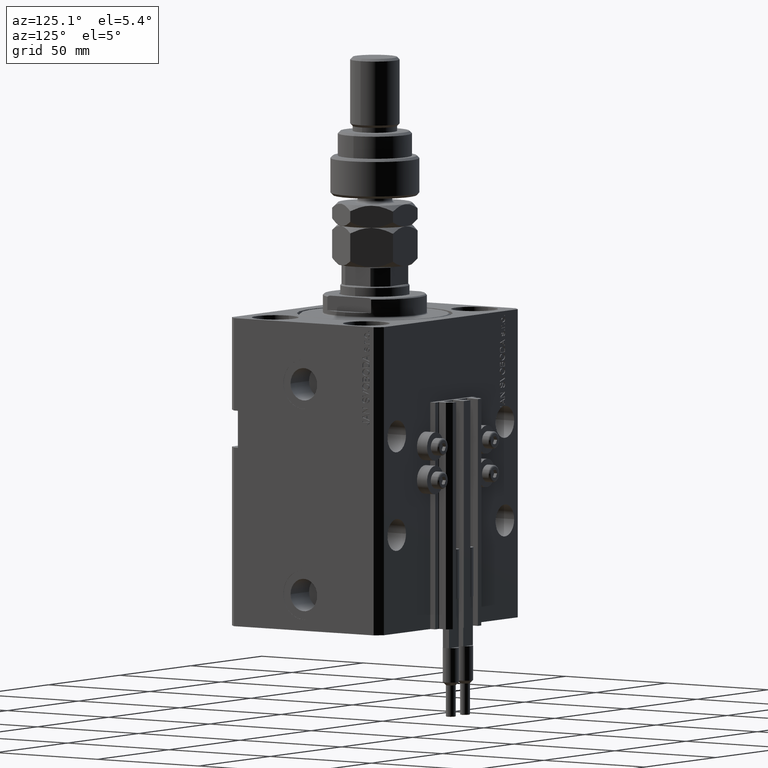
[diagram: clean part render]
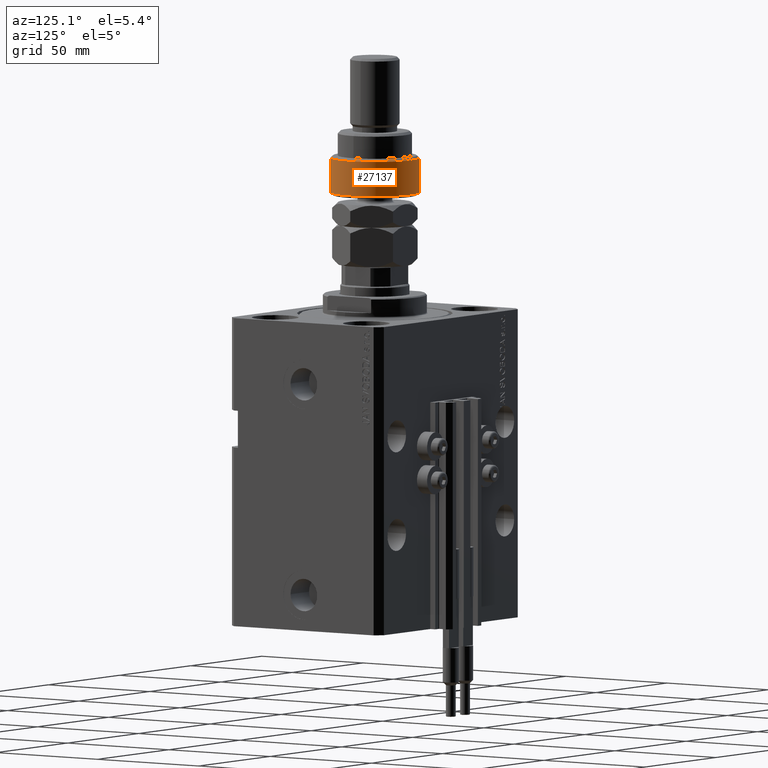
[diagram: same view with one face highlighted and labeled with its STEP entity id]
A machine part, auxiliary view. The second image highlights one B-rep face of the part: STEP entity #27137.
In plain terms, the highlighted cylindrical surface (partial cylindrical patch) has radius 18 mm, axis along (-0, -0, -1).
Its self-contained STEP definition (entity closure, byte-faithful):
#2492 = CARTESIAN_POINT ( 'NONE',  ( 0.000000000000000000, 0.000000000000000000, 16.00000000000000000 ) ) ;
#2497 = AXIS2_PLACEMENT_3D ( 'NONE', #26558, #17389, #49394 ) ;
#3448 = AXIS2_PLACEMENT_3D ( 'NONE', #36119, #32186, #29274 ) ;
#3774 = CARTESIAN_POINT ( 'NONE',  ( 18.00000000000000000, 0.000000000000000000, 1.000000000000011324 ) ) ;
#4339 = EDGE_CURVE ( 'NONE', #26249, #42241, #51588, .T. ) ;
#4605 = EDGE_CURVE ( 'NONE', #26249, #32188, #39437, .T. ) ;
#6424 = DIRECTION ( 'NONE',  ( -0.000000000000000000, -0.000000000000000000, -1.000000000000000000 ) ) ;
#9317 = CYLINDRICAL_SURFACE ( 'NONE', #45551, 18.00000000000000000 ) ;
#10600 = DIRECTION ( 'NONE',  ( 1.000000000000000000, 0.000000000000000000, 0.000000000000000000 ) ) ;
#11378 = DIRECTION ( 'NONE',  ( -0.000000000000000000, -0.000000000000000000, -1.000000000000000000 ) ) ;
#11933 = ORIENTED_EDGE ( 'NONE', *, *, #4339, .T. ) ;
#12141 = VECTOR ( 'NONE', #35568, 1000.000000000000000 ) ;
#12269 = CARTESIAN_POINT ( 'NONE',  ( -16.36306817195357155, -7.500000000000000000, 1.000000000000011324 ) ) ;
#12589 = VERTEX_POINT ( 'NONE', #12269 ) ;
#12603 = EDGE_LOOP ( 'NONE', ( #27669, #11933, #24846, #21149, #27142 ) ) ;
#16034 = EDGE_CURVE ( 'NONE', #27220, #32188, #25104, .T. ) ;
#16281 = CARTESIAN_POINT ( 'NONE',  ( -16.36306817195357155, 7.500000000000000000, 14.99999999999999645 ) ) ;
#17389 = DIRECTION ( 'NONE',  ( -0.000000000000000000, -0.000000000000000000, 1.000000000000000000 ) ) ;
#17701 = DIRECTION ( 'NONE',  ( -1.000000000000000000, 0.000000000000000000, 0.000000000000000000 ) ) ;
#21149 = ORIENTED_EDGE ( 'NONE', *, *, #30273, .T. ) ;
#24846 = ORIENTED_EDGE ( 'NONE', *, *, #42419, .T. ) ;
#25104 = CIRCLE ( 'NONE', #2497, 18.00000000000000000 ) ;
#26249 = VERTEX_POINT ( 'NONE', #16281 ) ;
#26558 = CARTESIAN_POINT ( 'NONE',  ( 0.000000000000000000, 0.000000000000000000, 1.000000000000011324 ) ) ;
#26937 = LINE ( 'NONE', #44944, #12141 ) ;
#27137 = ADVANCED_FACE ( 'NONE', ( #45781 ), #9317, .T. ) ;
#27142 = ORIENTED_EDGE ( 'NONE', *, *, #16034, .T. ) ;
#27220 = VERTEX_POINT ( 'NONE', #3774 ) ;
#27669 = ORIENTED_EDGE ( 'NONE', *, *, #4605, .F. ) ;
#28635 = CARTESIAN_POINT ( 'NONE',  ( -16.36306817195357155, 7.500000000000000000, 1.000000000000011324 ) ) ;
#29274 = DIRECTION ( 'NONE',  ( 1.000000000000000000, 0.000000000000000000, 0.000000000000000000 ) ) ;
#30273 = EDGE_CURVE ( 'NONE', #12589, #27220, #47817, .T. ) ;
#31457 = VECTOR ( 'NONE', #11378, 1000.000000000000000 ) ;
#32186 = DIRECTION ( 'NONE',  ( -0.000000000000000000, -0.000000000000000000, 1.000000000000000000 ) ) ;
#32188 = VERTEX_POINT ( 'NONE', #28635 ) ;
#35568 = DIRECTION ( 'NONE',  ( -0.000000000000000000, -0.000000000000000000, -1.000000000000000000 ) ) ;
#36119 = CARTESIAN_POINT ( 'NONE',  ( 0.000000000000000000, 0.000000000000000000, 1.000000000000011324 ) ) ;
#39437 = LINE ( 'NONE', #39702, #31457 ) ;
#39702 = CARTESIAN_POINT ( 'NONE',  ( -16.36306817195357155, 7.500000000000000000, 17.50000000000000000 ) ) ;
#42241 = VERTEX_POINT ( 'NONE', #44812 ) ;
#42326 = DIRECTION ( 'NONE',  ( 0.000000000000000000, 0.000000000000000000, -1.000000000000000000 ) ) ;
#42419 = EDGE_CURVE ( 'NONE', #42241, #12589, #26937, .T. ) ;
#44033 = AXIS2_PLACEMENT_3D ( 'NONE', #47032, #42326, #10600 ) ;
#44812 = CARTESIAN_POINT ( 'NONE',  ( -16.36306817195357155, -7.500000000000000000, 14.99999999999999645 ) ) ;
#44944 = CARTESIAN_POINT ( 'NONE',  ( -16.36306817195357155, -7.500000000000000000, 17.50000000000000000 ) ) ;
#45551 = AXIS2_PLACEMENT_3D ( 'NONE', #2492, #6424, #17701 ) ;
#45781 = FACE_OUTER_BOUND ( 'NONE', #12603, .T. ) ;
#47032 = CARTESIAN_POINT ( 'NONE',  ( 0.000000000000000000, 0.000000000000000000, 14.99999999999999645 ) ) ;
#47817 = CIRCLE ( 'NONE', #3448, 18.00000000000000000 ) ;
#49394 = DIRECTION ( 'NONE',  ( 1.000000000000000000, 0.000000000000000000, 0.000000000000000000 ) ) ;
#51588 = CIRCLE ( 'NONE', #44033, 18.00000000000000000 ) ;